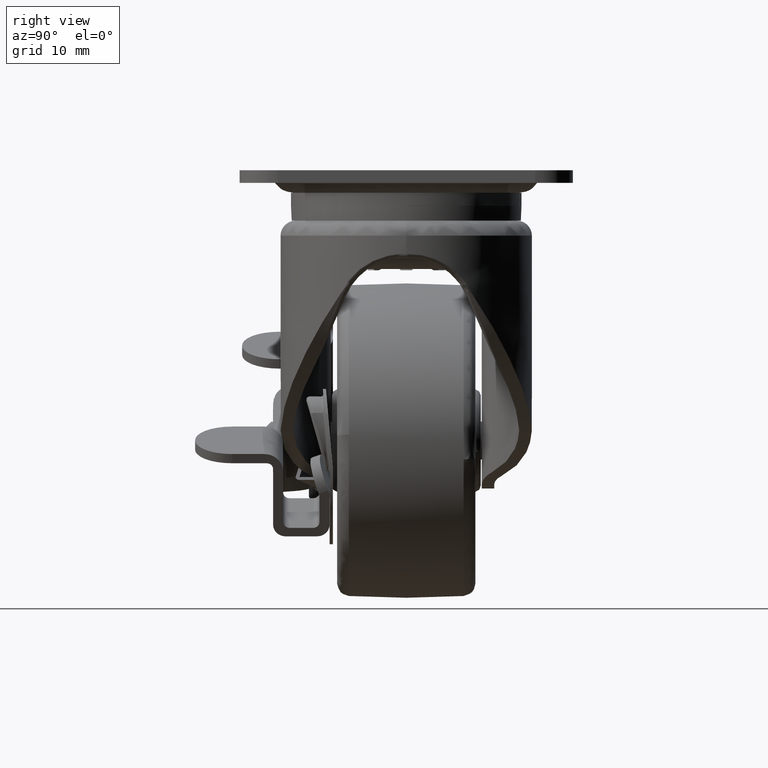
[diagram: clean part render]
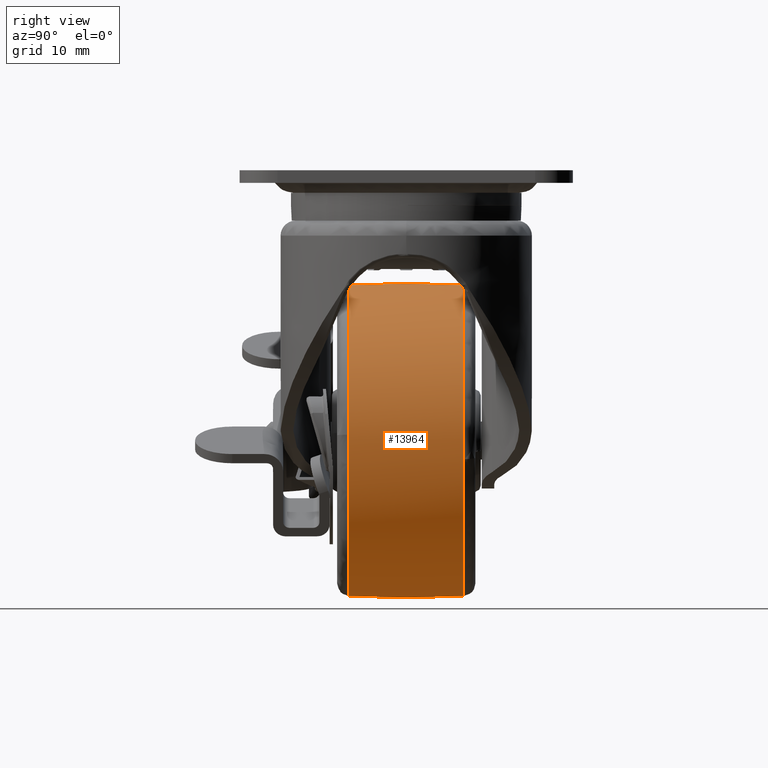
[diagram: same view with one face highlighted and labeled with its STEP entity id]
A machine part, right view. The second image highlights one B-rep face of the part: STEP entity #13964.
In plain terms, the highlighted face is a freeform B-spline surface patch.
Its self-contained STEP definition (entity closure, byte-faithful):
#12985=CARTESIAN_POINT('',(6.689324917443637,-9.121621714161687,-66.800206337758368));
#12986=VERTEX_POINT('',#12985);
#12998=CARTESIAN_POINT('',(24.704830497563261,-9.121624189092007,-42.068208362182382));
#12999=VERTEX_POINT('',#12998);
#13000=CARTESIAN_POINT('',(6.689324917443637,-9.121621714161687,-66.800206337758368));
#13001=CARTESIAN_POINT('',(8.426410916755751,-9.121621763294163,-66.312357998924867));
#13002=CARTESIAN_POINT('',(11.191500589633669,-9.121621875436462,-65.196144834918840));
#13003=CARTESIAN_POINT('',(14.723377054801830,-9.121622099090699,-62.965490351559723));
#13004=CARTESIAN_POINT('',(17.671701979233369,-9.121622351218971,-60.448497929715657));
#13005=CARTESIAN_POINT('',(20.172583062385069,-9.121622648459692,-57.478935714320059));
#13006=CARTESIAN_POINT('',(21.916718384494700,-9.121622940681194,-54.557893997767493));
#13007=CARTESIAN_POINT('',(23.118757340385841,-9.121623207255503,-51.892335487101143));
#13008=CARTESIAN_POINT('',(24.084211425285378,-9.121623501680874,-48.947468667557359));
#13009=CARTESIAN_POINT('',(24.679170872768960,-9.121623841110477,-45.551285429325510));
#13010=CARTESIAN_POINT('',(24.745324833962229,-9.121624081884503,-43.141397300769967));
#13011=CARTESIAN_POINT('',(24.704830497563261,-9.121624189092007,-42.068208362182382));
#13012=B_SPLINE_CURVE_WITH_KNOTS('',3,(#13000,#13001,#13002,#13003,#13004,#13005,#13006,#13007,#13008,#13009,#13010,#13011),.UNSPECIFIED.,.F.,.U.,(4,1,1,1,1,1,1,1,1,4),(0.000000057123707,5.412771097131785,8.892413474909638,12.500952243024500,17.011550471034131,20.491187057271890,22.682087130814409,25.775114183719172,29.770270538687431,32.992138634862577),.UNSPECIFIED.);
#13013=EDGE_CURVE('',#12986,#12999,#13012,.T.);
#13127=CARTESIAN_POINT('',(0.0,-9.121626578029773,-18.277603784300371));
#13128=VERTEX_POINT('',#13127);
#13129=CARTESIAN_POINT('',(24.704830497563261,-9.121624189092007,-42.068208362182382));
#13130=CARTESIAN_POINT('',(24.660246543227551,-9.121624307941676,-40.884625465651382));
#13131=CARTESIAN_POINT('',(24.389644233394751,-9.121624554872431,-38.425527907684803));
#13132=CARTESIAN_POINT('',(23.349164871000809,-9.121624948850089,-34.502040647839792));
#13133=CARTESIAN_POINT('',(21.601861606492740,-9.121625328452685,-30.721709062780661));
#13134=CARTESIAN_POINT('',(19.513417185805160,-9.121625630646024,-27.712271874937588));
#13135=CARTESIAN_POINT('',(17.233901054586500,-9.121625885196551,-25.177288369704840));
#13136=CARTESIAN_POINT('',(14.454599534512090,-9.121626124929817,-22.789869347388240));
#13137=CARTESIAN_POINT('',(10.661978732305380,-9.121626351148583,-20.537038111070942));
#13138=CARTESIAN_POINT('',(6.844547084371759,-9.121626491208183,-19.142223289519318));
#13139=CARTESIAN_POINT('',(3.257158251476762,-9.121626563328137,-18.424025788728859));
#13140=CARTESIAN_POINT('',(1.135075747371929,-9.121626578033045,-18.277555185588710));
#13141=CARTESIAN_POINT('',(0.0,-9.121626578029773,-18.277603784300371));
#13142=B_SPLINE_CURVE_WITH_KNOTS('',3,(#13129,#13130,#13131,#13132,#13133,#13134,#13135,#13136,#13137,#13138,#13139,#13140,#13141),.UNSPECIFIED.,.F.,.U.,(4,1,1,1,1,1,1,1,1,1,4),(0.000000079234191,3.553266286921826,7.402710498459843,12.140467215890229,15.989900275416691,18.358780719573620,22.356171699679269,26.945876570234411,31.535577280834499,34.496668722236528,37.901893580684167),.UNSPECIFIED.);
#13143=EDGE_CURVE('',#12999,#13128,#13142,.T.);
#13145=CARTESIAN_POINT('',(-24.557048597239341,-9.121634293194809,-40.145492057110388));
#13146=VERTEX_POINT('',#13145);
#13162=CARTESIAN_POINT('',(0.0,-9.121621621621589,-67.722396517661792));
#13163=VERTEX_POINT('',#13162);
#13164=CARTESIAN_POINT('',(-24.557048597239341,-9.121634293194809,-40.145492057110388));
#13165=CARTESIAN_POINT('',(-24.739046509634321,-9.121633933945921,-41.709358050963097));
#13166=CARTESIAN_POINT('',(-24.789346046070008,-9.121633302626016,-44.217575281573993));
#13167=CARTESIAN_POINT('',(-24.326497279344508,-9.121632299013632,-47.721532096216293));
#13168=CARTESIAN_POINT('',(-23.519361183772379,-9.121631304354816,-50.883965749693829));
#13169=CARTESIAN_POINT('',(-22.313929787216338,-9.121630281027837,-53.803584767805397));
#13170=CARTESIAN_POINT('',(-20.747310474429050,-9.121629222353848,-56.539492246655357));
#13171=CARTESIAN_POINT('',(-18.819251855829851,-9.121628107461898,-59.172906216193702));
#13172=CARTESIAN_POINT('',(-16.442776137335599,-9.121626949768317,-61.574018212325051));
#13173=CARTESIAN_POINT('',(-13.800021744730660,-9.121625832979184,-63.578402154717267));
#13174=CARTESIAN_POINT('',(-11.365157122242060,-9.121624908652082,-65.016918765121162));
#13175=CARTESIAN_POINT('',(-8.483355262113660,-9.121623922638515,-66.298142748692328));
#13176=CARTESIAN_POINT('',(-4.723131142154647,-9.121622780508821,-67.406306610275152));
#13177=CARTESIAN_POINT('',(-1.737297964973881,-9.121622018022844,-67.722681222031241));
#13178=CARTESIAN_POINT('',(0.0,-9.121621621621589,-67.722396517661792));
#13179=B_SPLINE_CURVE_WITH_KNOTS('',3,(#13164,#13165,#13166,#13167,#13168,#13169,#13170,#13171,#13172,#13173,#13174,#13175,#13176,#13177,#13178),.UNSPECIFIED.,.F.,.U.,(4,1,1,1,1,1,1,1,1,1,1,1,4),(0.000000093121713,4.723213393406269,7.492018927542127,10.586574635502560,14.495479856339770,16.938548002995081,20.033111354967239,24.267659943687779,27.036455270304248,29.968141205831461,32.736952037123139,36.482974038244343,41.694813430451077),.UNSPECIFIED.);
#13180=EDGE_CURVE('',#13146,#13163,#13179,.T.);
#13182=CARTESIAN_POINT('',(0.0,-9.121621621621589,-67.722396517661792));
#13183=CARTESIAN_POINT('',(2.257988647491214,-9.121621621562657,-67.722983840540010));
#13184=CARTESIAN_POINT('',(4.515687288285347,-9.121621652820425,-67.411490784571768));
#13185=CARTESIAN_POINT('',(6.689324917443637,-9.121621714161687,-66.800206337758368));
#13186=B_SPLINE_CURVE_WITH_KNOTS('',3,(#13182,#13183,#13184,#13185),.UNSPECIFIED.,.F.,.U.,(4,4),(2.283242E-009,6.773781455028646),.UNSPECIFIED.);
#13187=EDGE_CURVE('',#13163,#12986,#13186,.T.);
#13222=CARTESIAN_POINT('',(24.544444815151309,9.121622620193179,-45.960931774208319));
#13223=VERTEX_POINT('',#13222);
#13224=CARTESIAN_POINT('',(0.0,9.121623894445101,-18.277603620806701));
#13225=VERTEX_POINT('',#13224);
#13226=CARTESIAN_POINT('',(24.544444815151309,9.121622620193179,-45.960931774208319));
#13227=CARTESIAN_POINT('',(24.733668194415969,9.121622692400495,-44.393854732803973));
#13228=CARTESIAN_POINT('',(24.798440726386300,9.121622815807282,-41.715358516212980));
#13229=CARTESIAN_POINT('',(24.312248854378211,9.121622977595946,-38.203200099345104));
#13230=CARTESIAN_POINT('',(23.496638441021890,9.121623120873068,-35.092502035838933));
#13231=CARTESIAN_POINT('',(22.040560301136960,9.121623286284011,-31.500713434712210));
#13232=CARTESIAN_POINT('',(19.630494726752239,9.121623460607692,-27.714492021653999));
#13233=CARTESIAN_POINT('',(16.650912187378669,9.121623604391751,-24.590534466366680));
#13234=CARTESIAN_POINT('',(14.053074637367651,9.121623695985365,-22.599797840113499));
#13235=CARTESIAN_POINT('',(11.630398399299720,9.121623763521079,-21.131380820650389));
#13236=CARTESIAN_POINT('',(8.915602433295417,9.121623822161228,-19.855805795990189));
#13237=CARTESIAN_POINT('',(4.952943797248357,9.121623878552642,-18.627679271814621));
#13238=CARTESIAN_POINT('',(1.850636919342358,9.121623894551014,-18.277229554929139));
#13239=CARTESIAN_POINT('',(0.0,9.121623894445101,-18.277603620806701));
#13240=B_SPLINE_CURVE_WITH_KNOTS('',3,(#13226,#13227,#13228,#13229,#13230,#13231,#13232,#13233,#13234,#13235,#13236,#13237,#13238,#13239),.UNSPECIFIED.,.F.,.U.,(4,1,1,1,1,1,1,1,1,1,1,4),(0.000000096487604,4.735351144323253,8.001146038849427,10.613786322456381,14.369454341952720,19.594731207353600,24.003480761466609,27.269237006449980,29.392016043742512,32.494516110656662,36.250165439509693,41.801982041120318),.UNSPECIFIED.);
#13241=EDGE_CURVE('',#13223,#13225,#13240,.T.);
#13294=CARTESIAN_POINT('',(-24.673611907774930,9.121631621813716,-41.447667916859132));
#13295=VERTEX_POINT('',#13294);
#13307=CARTESIAN_POINT('',(-24.557048732616071,9.121631869949166,-40.145491943116667));
#13308=VERTEX_POINT('',#13307);
#13309=CARTESIAN_POINT('',(-24.557048732616071,9.121631869949166,-40.145491943116667));
#13310=CARTESIAN_POINT('',(-24.607372797932211,9.121631789505111,-40.578421140792820));
#13311=CARTESIAN_POINT('',(-24.646246121907179,9.121631706754473,-41.012684136622610));
#13312=CARTESIAN_POINT('',(-24.673611907774930,9.121631621813716,-41.447667916859132));
#13313=B_SPLINE_CURVE_WITH_KNOTS('',3,(#13309,#13310,#13311,#13312),.UNSPECIFIED.,.F.,.U.,(4,4),(8.128920E-011,1.307537361109627),.UNSPECIFIED.);
#13314=EDGE_CURVE('',#13308,#13295,#13313,.T.);
#13357=CARTESIAN_POINT('',(0.0,9.121621621621630,-67.722396517661792));
#13358=VERTEX_POINT('',#13357);
#13359=CARTESIAN_POINT('',(0.0,9.121621621621630,-67.722396517661792));
#13360=CARTESIAN_POINT('',(2.054857341099887,9.121621621599601,-67.722876143335938));
#13361=CARTESIAN_POINT('',(5.323615245274364,9.121621640431298,-67.312485994866336));
#13362=CARTESIAN_POINT('',(9.053603658688111,9.121621697740814,-66.063561199287079));
#13363=CARTESIAN_POINT('',(11.933968823423360,9.121621759373756,-64.720420928970171));
#13364=CARTESIAN_POINT('',(14.282519616402739,9.121621826245425,-63.263113204644178));
#13365=CARTESIAN_POINT('',(16.894004249325452,9.121621923719996,-61.138888230903738));
#13366=CARTESIAN_POINT('',(19.128052489393959,9.121622030876019,-58.803685270878418));
#13367=CARTESIAN_POINT('',(21.264762569362990,9.121622169407806,-55.784705653624272));
#13368=CARTESIAN_POINT('',(22.681940519520481,9.121622297885626,-52.984854672410442));
#13369=CARTESIAN_POINT('',(23.882592458918470,9.121622449023105,-49.691170682263383));
#13370=CARTESIAN_POINT('',(24.360065642259588,9.121622549982838,-47.490987348427190));
#13371=CARTESIAN_POINT('',(24.544444815151309,9.121622620193179,-45.960931774208319));
#13372=B_SPLINE_CURVE_WITH_KNOTS('',3,(#13359,#13360,#13361,#13362,#13363,#13364,#13365,#13366,#13367,#13368,#13369,#13370,#13371),.UNSPECIFIED.,.F.,.U.,(4,1,1,1,1,1,1,1,1,1,4),(0.000000071215091,6.164435244806150,9.807069221154443,11.768492858587781,15.691338516377920,18.072970066957659,21.855733238289879,25.358262460510339,29.141010085451370,31.242513573255799,35.865841077565108),.UNSPECIFIED.);
#13373=EDGE_CURVE('',#13358,#13223,#13372,.T.);
#13375=CARTESIAN_POINT('',(-24.673611907774930,9.121631621813716,-41.447667916859132));
#13376=CARTESIAN_POINT('',(-24.742979400906592,9.121631406159910,-42.549809348438373));
#13377=CARTESIAN_POINT('',(-24.732662714738119,9.121630890780823,-45.026963418747563));
#13378=CARTESIAN_POINT('',(-24.206107219561879,9.121630091051120,-48.416254587902621));
#13379=CARTESIAN_POINT('',(-23.242710312989921,9.121629254992628,-51.591847587657689));
#13380=CARTESIAN_POINT('',(-22.123080081611452,9.121628518122103,-54.149819437027517));
#13381=CARTESIAN_POINT('',(-20.699748332682301,9.121627745186922,-56.611366263325429));
#13382=CARTESIAN_POINT('',(-18.853672996733259,9.121626886092747,-59.112160919242967));
#13383=CARTESIAN_POINT('',(-16.569983816254560,9.121625979479195,-61.452557585122257));
#13384=CARTESIAN_POINT('',(-13.865660097148240,9.121625044878861,-63.553442425787168));
#13385=CARTESIAN_POINT('',(-11.454466651642671,9.121624307256310,-64.965046851608548));
#13386=CARTESIAN_POINT('',(-8.812948728913536,9.121623574449858,-66.148340579515775));
#13387=CARTESIAN_POINT('',(-5.205935332140105,9.121622664305205,-67.327495494849970));
#13388=CARTESIAN_POINT('',(-2.050959162578890,9.121622000052241,-67.722890721249172));
#13389=CARTESIAN_POINT('',(0.0,9.121621621621630,-67.722396517661792));
#13390=B_SPLINE_CURVE_WITH_KNOTS('',3,(#13375,#13376,#13377,#13378,#13379,#13380,#13381,#13382,#13383,#13384,#13385,#13386,#13387,#13388,#13389),.UNSPECIFIED.,.F.,.U.,(4,1,1,1,1,1,1,1,1,1,1,1,4),(0.000000091127028,3.312976967683333,7.414842547573059,10.254581958652070,13.252078579315359,15.776312646509700,18.773775049233421,22.560062264814619,25.557547933822899,29.028344160452981,30.921505996080530,34.234547967633432,40.387271771232989),.UNSPECIFIED.);
#13391=EDGE_CURVE('',#13295,#13358,#13390,.T.);
#13893=CARTESIAN_POINT('',(-24.499261751210518,-10.030940992342105,-40.152164881218859));
#13894=CARTESIAN_POINT('',(-25.167068610948501,-2.432914E-014,-40.074537896086113));
#13895=CARTESIAN_POINT('',(-24.499261751210533,10.030940992342055,-40.152164881218859));
#13896=CARTESIAN_POINT('',(-24.664224926360241,-10.030940992342105,-41.571304627284498));
#13897=CARTESIAN_POINT('',(-25.336528392611825,-2.582536E-014,-41.532360899915709));
#13898=CARTESIAN_POINT('',(-24.664224926360252,10.030940992342055,-41.571304627284498));
#13899=CARTESIAN_POINT('',(-24.664224926360241,-10.030940992342108,-43.000000000000007));
#13900=CARTESIAN_POINT('',(-25.336528392611825,-2.813026E-014,-43.000000000000007));
#13901=CARTESIAN_POINT('',(-24.664224926360241,10.030940992342050,-43.000000000000007));
#13902=CARTESIAN_POINT('',(-24.664224926360244,-10.030940992342110,-67.664224926360234));
#13903=CARTESIAN_POINT('',(-25.336528392611825,-3.017959E-014,-68.336528392611825));
#13904=CARTESIAN_POINT('',(-24.664224926360244,10.030940992342048,-67.664224926360234));
#13905=CARTESIAN_POINT('',(0.0,-10.030940992342108,-67.664224926360234));
#13906=CARTESIAN_POINT('',(0.0,-2.813026E-014,-68.336528392611825));
#13907=CARTESIAN_POINT('',(0.0,10.030940992342050,-67.664224926360234));
#13908=CARTESIAN_POINT('',(24.664224926360227,-10.030940992342110,-67.664224926360234));
#13909=CARTESIAN_POINT('',(25.336528392611825,-3.017959E-014,-68.336528392611825));
#13910=CARTESIAN_POINT('',(24.664224926360244,10.030940992342048,-67.664224926360234));
#13911=CARTESIAN_POINT('',(24.664224926360241,-10.030940992342108,-43.000000000000007));
#13912=CARTESIAN_POINT('',(25.336528392611825,-2.813026E-014,-43.000000000000007));
#13913=CARTESIAN_POINT('',(24.664224926360241,10.030940992342050,-43.000000000000007));
#13914=CARTESIAN_POINT('',(24.664224926360244,-10.030940992342110,-18.335775073639752));
#13915=CARTESIAN_POINT('',(25.336528392611825,-3.017959E-014,-17.663471607388175));
#13916=CARTESIAN_POINT('',(24.664224926360244,10.030940992342048,-18.335775073639752));
#13917=CARTESIAN_POINT('',(0.0,-10.030940992342108,-18.335775073639752));
#13918=CARTESIAN_POINT('',(0.0,-2.813026E-014,-17.663471607388168));
#13919=CARTESIAN_POINT('',(0.0,10.030940992342050,-18.335775073639752));
#13927=(BOUNDED_SURFACE()B_SPLINE_SURFACE(2,2,((#13893,#13896,#13899,#13902,#13905,#13908,#13911,#13914,#13917),(#13894,#13897,#13900,#13903,#13906,#13909,#13912,#13915,#13918),(#13895,#13898,#13901,#13904,#13907,#13910,#13913,#13916,#13919)),.UNSPECIFIED.,.F.,.F.,.U.)B_SPLINE_SURFACE_WITH_KNOTS((3,3),(3,2,2,2,3),(0.0,20.084361411123592),(0.0,3.313707807691297,44.735064045000797,86.156420282310307,127.577776519619800),.UNSPECIFIED.)GEOMETRIC_REPRESENTATION_ITEM()RATIONAL_B_SPLINE_SURFACE(((0.878128461365174,0.896190896982613,0.917693795672736,0.648907505973014,0.917693795672736,0.648907505973014,0.917693795672736,0.648907505973014,0.917693795672736),(0.876162770373306,0.894184773219749,0.915639537660597,0.647454926202324,0.915639537660597,0.647454926202324,0.915639537660597,0.647454926202324,0.915639537660597),(0.878128461365174,0.896190896982613,0.917693795672736,0.648907505973014,0.917693795672736,0.648907505973014,0.917693795672736,0.648907505973014,0.917693795672736)))REPRESENTATION_ITEM('')SURFACE());
#13928=ORIENTED_EDGE('',*,*,#13180,.F.);
#13929=CARTESIAN_POINT('',(-24.557048597239341,-9.121634293194809,-40.145492057110388));
#13930=CARTESIAN_POINT('',(-25.109054862429048,-0.000001216119988,-40.081325863636742));
#13931=CARTESIAN_POINT('',(-24.557048732616074,9.121631869949166,-40.145491943116674));
#13939=(BOUNDED_CURVE()B_SPLINE_CURVE(2,(#13929,#13930,#13931),.UNSPECIFIED.,.F.,.U.)B_SPLINE_CURVE_WITH_KNOTS((3,3),(0.449531568453340,0.550468418114401),.UNSPECIFIED.)CURVE()GEOMETRIC_REPRESENTATION_ITEM()RATIONAL_B_SPLINE_CURVE((0.877958024617313,0.876333192281789,0.877958024184861))REPRESENTATION_ITEM(''));
#13940=EDGE_CURVE('',#13146,#13308,#13939,.T.);
#13941=ORIENTED_EDGE('',*,*,#13940,.T.);
#13942=ORIENTED_EDGE('',*,*,#13314,.T.);
#13943=ORIENTED_EDGE('',*,*,#13391,.T.);
#13944=ORIENTED_EDGE('',*,*,#13373,.T.);
#13945=ORIENTED_EDGE('',*,*,#13241,.T.);
#13946=CARTESIAN_POINT('',(0.0,-9.121626578029773,-18.277603784300371));
#13947=CARTESIAN_POINT('',(0.0,-0.000001346772650,-17.721881586103581));
#13948=CARTESIAN_POINT('',(0.0,9.121623894445103,-18.277603620806655));
#13956=(BOUNDED_CURVE()B_SPLINE_CURVE(2,(#13946,#13947,#13948),.UNSPECIFIED.,.F.,.U.)B_SPLINE_CURVE_WITH_KNOTS((3,3),(0.449531611219193,0.550468373905466),.UNSPECIFIED.)CURVE()GEOMETRIC_REPRESENTATION_ITEM()RATIONAL_B_SPLINE_CURVE((0.917515686088710,0.915817647494868,0.917515685588221))REPRESENTATION_ITEM(''));
#13957=EDGE_CURVE('',#13128,#13225,#13956,.T.);
#13958=ORIENTED_EDGE('',*,*,#13957,.F.);
#13959=ORIENTED_EDGE('',*,*,#13143,.F.);
#13960=ORIENTED_EDGE('',*,*,#13013,.F.);
#13961=ORIENTED_EDGE('',*,*,#13187,.F.);
#13962=EDGE_LOOP('',(#13928,#13941,#13942,#13943,#13944,#13945,#13958,#13959,#13960,#13961));
#13963=FACE_OUTER_BOUND('',#13962,.T.);
#13964=ADVANCED_FACE('',(#13963),#13927,.T.);